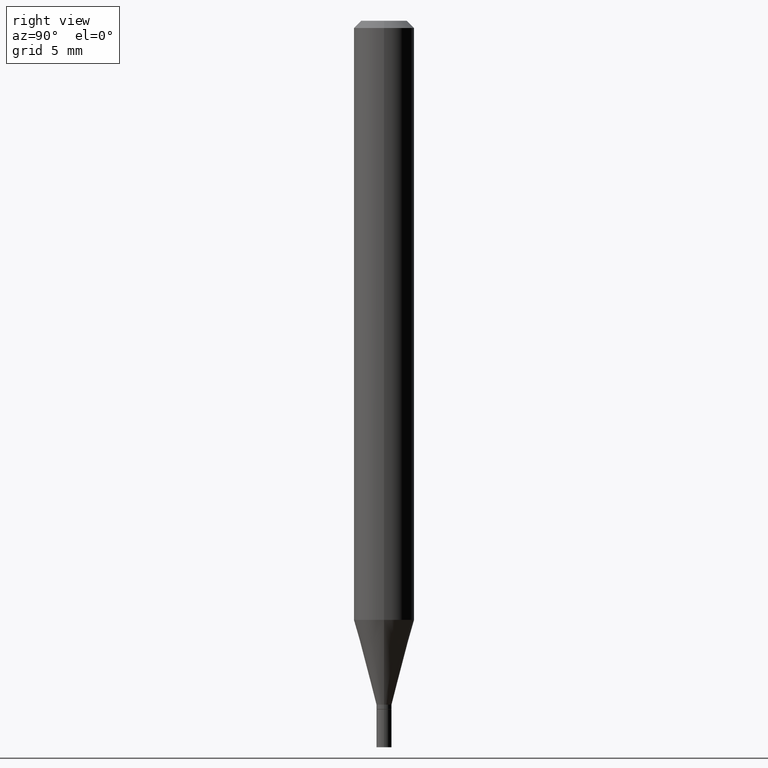
[diagram: clean part render]
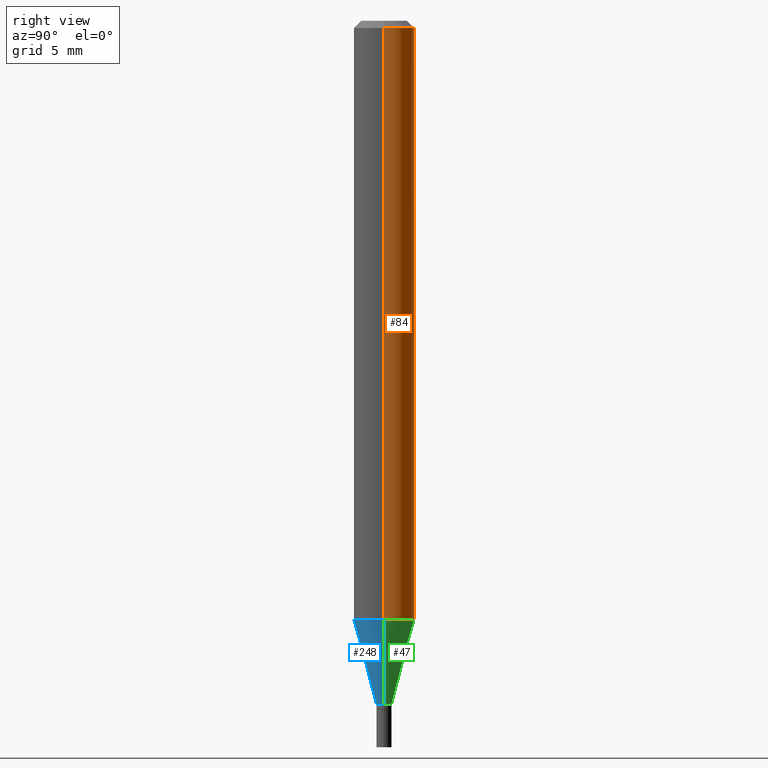
[diagram: same view with three faces highlighted in distinct colors, each labeled with its STEP entity id]
A machine part, right view with three faces highlighted in distinct colors.
Their STEP definitions:

[orange] entity #84 — the highlighted cylindrical surface (edge-blend (fillet) strip) has radius 1.5875 mm, axis along (-0, 0, 1).
#4 = CIRCLE ( 'NONE', #129, 0.06250000000000000000 ) ;
#38 = CARTESIAN_POINT ( 'NONE',  ( 3.024963765565350895E-29, -4.318846558760209820E-15, -1.236966817125020102 ) ) ;
#39 = VERTEX_POINT ( 'NONE', #313 ) ;
#52 = VECTOR ( 'NONE', #277, 39.37007874015748143 ) ;
#58 = VERTEX_POINT ( 'NONE', #204 ) ;
#77 = DIRECTION ( 'NONE',  ( -2.445468806185136597E-29, 3.491481338843145583E-15, 1.000000000000000000 ) ) ;
#79 = DIRECTION ( 'NONE',  ( 1.000000000000000000, -6.982962677686267499E-15, 0.000000000000000000 ) ) ;
#84 = ADVANCED_FACE ( 'NONE', ( #202 ), #351, .T. ) ;
#87 = LINE ( 'NONE', #98, #434 ) ;
#88 = AXIS2_PLACEMENT_3D ( 'NONE', #172, #461, #458 ) ;
#89 = CARTESIAN_POINT ( 'NONE',  ( -0.06250000000000001388, 4.440892098500627148E-16, -3.074334431409316814E-30 ) ) ;
#98 = CARTESIAN_POINT ( 'NONE',  ( 0.06250000000000001388, -4.364351673553917187E-16, 3.047610484872460221E-30 ) ) ;
#110 = DIRECTION ( 'NONE',  ( 1.000000000000000000, -6.982962677686262766E-15, 0.000000000000000000 ) ) ;
#129 = AXIS2_PLACEMENT_3D ( 'NONE', #38, #256, #110 ) ;
#140 = ORIENTED_EDGE ( 'NONE', *, *, #337, .T. ) ;
#172 = CARTESIAN_POINT ( 'NONE',  ( 0.000000000000000000, 0.000000000000000000, 0.000000000000000000 ) ) ;
#193 = DIRECTION ( 'NONE',  ( -2.445468806185136877E-29, 3.491481338843145188E-15, 1.000000000000000000 ) ) ;
#201 = VERTEX_POINT ( 'NONE', #230 ) ;
#202 = FACE_OUTER_BOUND ( 'NONE', #350, .T. ) ;
#204 = CARTESIAN_POINT ( 'NONE',  ( -0.06250000000000002776, -1.741520179571366031E-15, -0.01499999999999999944 ) ) ;
#212 = LINE ( 'NONE', #89, #52 ) ;
#229 = EDGE_CURVE ( 'NONE', #39, #241, #87, .T. ) ;
#230 = CARTESIAN_POINT ( 'NONE',  ( -0.06250000000000000000, -3.874757348910146415E-15, -1.236966817125020102 ) ) ;
#241 = VERTEX_POINT ( 'NONE', #296 ) ;
#256 = DIRECTION ( 'NONE',  ( -2.445468806185136597E-29, 3.491481338843145583E-15, 1.000000000000000000 ) ) ;
#277 = DIRECTION ( 'NONE',  ( -2.445468806185136877E-29, 3.491481338843145188E-15, 1.000000000000000000 ) ) ;
#296 = CARTESIAN_POINT ( 'NONE',  ( 0.06250000000000001388, -4.888073874380389458E-16, -0.01499999999999999944 ) ) ;
#313 = CARTESIAN_POINT ( 'NONE',  ( 0.06250000000000000000, -4.755281726115601490E-15, -1.236966817125020102 ) ) ;
#314 = ORIENTED_EDGE ( 'NONE', *, *, #437, .T. ) ;
#318 = AXIS2_PLACEMENT_3D ( 'NONE', #406, #77, #79 ) ;
#337 = EDGE_CURVE ( 'NONE', #201, #58, #212, .T. ) ;
#350 = EDGE_LOOP ( 'NONE', ( #314, #140, #432, #401 ) ) ;
#351 = CYLINDRICAL_SURFACE ( 'NONE', #88, 0.06250000000000001388 ) ;
#387 = CIRCLE ( 'NONE', #318, 0.06250000000000001388 ) ;
#401 = ORIENTED_EDGE ( 'NONE', *, *, #229, .F. ) ;
#406 = CARTESIAN_POINT ( 'NONE',  ( 3.668203209277705088E-31, -5.237222008264718399E-17, -0.01499999999999999944 ) ) ;
#432 = ORIENTED_EDGE ( 'NONE', *, *, #453, .F. ) ;
#434 = VECTOR ( 'NONE', #193, 39.37007874015748143 ) ;
#437 = EDGE_CURVE ( 'NONE', #39, #201, #4, .T. ) ;
#453 = EDGE_CURVE ( 'NONE', #241, #58, #387, .T. ) ;
#458 = DIRECTION ( 'NONE',  ( 1.000000000000000000, -6.982962677686265922E-15, 4.876176775795935232E-29 ) ) ;
#461 = DIRECTION ( 'NONE',  ( -2.445468806185136597E-29, 3.491481338843145583E-15, 1.000000000000000000 ) ) ;

[blue] entity #248 — the highlighted conical surface has half-angle 15 deg.
#8 = CARTESIAN_POINT ( 'NONE',  ( -0.01559999999999992816, -4.819126983667946462E-15, -1.412000000000000144 ) ) ;
#9 = CONICAL_SURFACE ( 'NONE', #56, 0.01559999999999992816, 0.2617993877991502405 ) ;
#12 = DIRECTION ( 'NONE',  ( 1.000000000000000000, -6.982962677686252511E-15, 0.000000000000000000 ) ) ;
#39 = VERTEX_POINT ( 'NONE', #313 ) ;
#46 = CIRCLE ( 'NONE', #163, 0.01559999999999992816 ) ;
#56 = AXIS2_PLACEMENT_3D ( 'NONE', #83, #215, #12 ) ;
#78 = CARTESIAN_POINT ( 'NONE',  ( 3.024963765565350895E-29, -4.318846558760209820E-15, -1.236966817125020102 ) ) ;
#83 = CARTESIAN_POINT ( 'NONE',  ( 3.453001954333413314E-29, -4.929971650446521716E-15, -1.412000000000000144 ) ) ;
#96 = EDGE_CURVE ( 'NONE', #104, #39, #420, .T. ) ;
#104 = VERTEX_POINT ( 'NONE', #225 ) ;
#127 = VERTEX_POINT ( 'NONE', #274 ) ;
#133 = VECTOR ( 'NONE', #443, 39.37007874015748143 ) ;
#154 = LINE ( 'NONE', #8, #133 ) ;
#163 = AXIS2_PLACEMENT_3D ( 'NONE', #261, #297, #380 ) ;
#166 = VECTOR ( 'NONE', #275, 39.37007874015748143 ) ;
#184 = DIRECTION ( 'NONE',  ( 1.000000000000000000, -6.982962677686262766E-15, 0.000000000000000000 ) ) ;
#201 = VERTEX_POINT ( 'NONE', #230 ) ;
#203 = ORIENTED_EDGE ( 'NONE', *, *, #263, .T. ) ;
#215 = DIRECTION ( 'NONE',  ( -2.445468806185136597E-29, 3.491481338843145583E-15, 1.000000000000000000 ) ) ;
#225 = CARTESIAN_POINT ( 'NONE',  ( 0.01559999999999992816, -5.038905868218426694E-15, -1.412000000000000144 ) ) ;
#230 = CARTESIAN_POINT ( 'NONE',  ( -0.06250000000000000000, -3.874757348910146415E-15, -1.236966817125020102 ) ) ;
#246 = EDGE_CURVE ( 'NONE', #127, #201, #154, .T. ) ;
#247 = ORIENTED_EDGE ( 'NONE', *, *, #246, .F. ) ;
#248 = ADVANCED_FACE ( 'NONE', ( #413 ), #9, .T. ) ;
#261 = CARTESIAN_POINT ( 'NONE',  ( 3.453001954333413314E-29, -4.929971650446521716E-15, -1.412000000000000144 ) ) ;
#263 = EDGE_CURVE ( 'NONE', #127, #104, #46, .T. ) ;
#266 = CIRCLE ( 'NONE', #328, 0.06250000000000000000 ) ;
#274 = CARTESIAN_POINT ( 'NONE',  ( -0.01559999999999992816, -4.346942166289046833E-15, -1.412000000000000144 ) ) ;
#275 = DIRECTION ( 'NONE',  ( 0.2588190451025215166, 1.565188264969620784E-15, 0.9659258262890679791 ) ) ;
#281 = ORIENTED_EDGE ( 'NONE', *, *, #96, .T. ) ;
#287 = ORIENTED_EDGE ( 'NONE', *, *, #303, .F. ) ;
#297 = DIRECTION ( 'NONE',  ( -2.445468806185136597E-29, 3.491481338843145583E-15, 1.000000000000000000 ) ) ;
#303 = EDGE_CURVE ( 'NONE', #201, #39, #266, .T. ) ;
#313 = CARTESIAN_POINT ( 'NONE',  ( 0.06250000000000000000, -4.755281726115601490E-15, -1.236966817125020102 ) ) ;
#328 = AXIS2_PLACEMENT_3D ( 'NONE', #78, #415, #184 ) ;
#346 = CARTESIAN_POINT ( 'NONE',  ( 0.01559999999999992816, -5.038905868218426694E-15, -1.412000000000000144 ) ) ;
#380 = DIRECTION ( 'NONE',  ( 1.000000000000000000, -6.982962677686252511E-15, 0.000000000000000000 ) ) ;
#413 = FACE_OUTER_BOUND ( 'NONE', #459, .T. ) ;
#415 = DIRECTION ( 'NONE',  ( -2.445468806185136597E-29, 3.491481338843145583E-15, 1.000000000000000000 ) ) ;
#420 = LINE ( 'NONE', #346, #166 ) ;
#443 = DIRECTION ( 'NONE',  ( -0.2588190451025215166, 5.211531920934551042E-15, 0.9659258262890679791 ) ) ;
#459 = EDGE_LOOP ( 'NONE', ( #247, #203, #281, #287 ) ) ;

[green] entity #47 — the highlighted conical surface has half-angle 15 deg.
#4 = CIRCLE ( 'NONE', #129, 0.06250000000000000000 ) ;
#8 = CARTESIAN_POINT ( 'NONE',  ( -0.01559999999999992816, -4.819126983667946462E-15, -1.412000000000000144 ) ) ;
#28 = ORIENTED_EDGE ( 'NONE', *, *, #437, .F. ) ;
#35 = FACE_OUTER_BOUND ( 'NONE', #244, .T. ) ;
#38 = CARTESIAN_POINT ( 'NONE',  ( 3.024963765565350895E-29, -4.318846558760209820E-15, -1.236966817125020102 ) ) ;
#39 = VERTEX_POINT ( 'NONE', #313 ) ;
#43 = ORIENTED_EDGE ( 'NONE', *, *, #96, .F. ) ;
#47 = ADVANCED_FACE ( 'NONE', ( #35 ), #423, .T. ) ;
#67 = DIRECTION ( 'NONE',  ( 1.000000000000000000, -6.982962677686252511E-15, 0.000000000000000000 ) ) ;
#96 = EDGE_CURVE ( 'NONE', #104, #39, #420, .T. ) ;
#104 = VERTEX_POINT ( 'NONE', #225 ) ;
#105 = DIRECTION ( 'NONE',  ( -2.445468806185136597E-29, 3.491481338843145583E-15, 1.000000000000000000 ) ) ;
#110 = DIRECTION ( 'NONE',  ( 1.000000000000000000, -6.982962677686262766E-15, 0.000000000000000000 ) ) ;
#114 = DIRECTION ( 'NONE',  ( -2.445468806185136597E-29, 3.491481338843145583E-15, 1.000000000000000000 ) ) ;
#127 = VERTEX_POINT ( 'NONE', #274 ) ;
#129 = AXIS2_PLACEMENT_3D ( 'NONE', #38, #256, #110 ) ;
#131 = CARTESIAN_POINT ( 'NONE',  ( 3.453001954333413314E-29, -4.929971650446521716E-15, -1.412000000000000144 ) ) ;
#133 = VECTOR ( 'NONE', #443, 39.37007874015748143 ) ;
#154 = LINE ( 'NONE', #8, #133 ) ;
#166 = VECTOR ( 'NONE', #275, 39.37007874015748143 ) ;
#201 = VERTEX_POINT ( 'NONE', #230 ) ;
#206 = CIRCLE ( 'NONE', #298, 0.01559999999999992816 ) ;
#225 = CARTESIAN_POINT ( 'NONE',  ( 0.01559999999999992816, -5.038905868218426694E-15, -1.412000000000000144 ) ) ;
#230 = CARTESIAN_POINT ( 'NONE',  ( -0.06250000000000000000, -3.874757348910146415E-15, -1.236966817125020102 ) ) ;
#244 = EDGE_LOOP ( 'NONE', ( #389, #363, #28, #43 ) ) ;
#246 = EDGE_CURVE ( 'NONE', #127, #201, #154, .T. ) ;
#256 = DIRECTION ( 'NONE',  ( -2.445468806185136597E-29, 3.491481338843145583E-15, 1.000000000000000000 ) ) ;
#274 = CARTESIAN_POINT ( 'NONE',  ( -0.01559999999999992816, -4.346942166289046833E-15, -1.412000000000000144 ) ) ;
#275 = DIRECTION ( 'NONE',  ( 0.2588190451025215166, 1.565188264969620784E-15, 0.9659258262890679791 ) ) ;
#298 = AXIS2_PLACEMENT_3D ( 'NONE', #327, #114, #465 ) ;
#313 = CARTESIAN_POINT ( 'NONE',  ( 0.06250000000000000000, -4.755281726115601490E-15, -1.236966817125020102 ) ) ;
#327 = CARTESIAN_POINT ( 'NONE',  ( 3.453001954333413314E-29, -4.929971650446521716E-15, -1.412000000000000144 ) ) ;
#346 = CARTESIAN_POINT ( 'NONE',  ( 0.01559999999999992816, -5.038905868218426694E-15, -1.412000000000000144 ) ) ;
#363 = ORIENTED_EDGE ( 'NONE', *, *, #246, .T. ) ;
#389 = ORIENTED_EDGE ( 'NONE', *, *, #411, .T. ) ;
#411 = EDGE_CURVE ( 'NONE', #104, #127, #206, .T. ) ;
#417 = AXIS2_PLACEMENT_3D ( 'NONE', #131, #105, #67 ) ;
#420 = LINE ( 'NONE', #346, #166 ) ;
#423 = CONICAL_SURFACE ( 'NONE', #417, 0.01559999999999992816, 0.2617993877991502405 ) ;
#437 = EDGE_CURVE ( 'NONE', #39, #201, #4, .T. ) ;
#443 = DIRECTION ( 'NONE',  ( -0.2588190451025215166, 5.211531920934551042E-15, 0.9659258262890679791 ) ) ;
#465 = DIRECTION ( 'NONE',  ( 1.000000000000000000, -6.982962677686252511E-15, 0.000000000000000000 ) ) ;